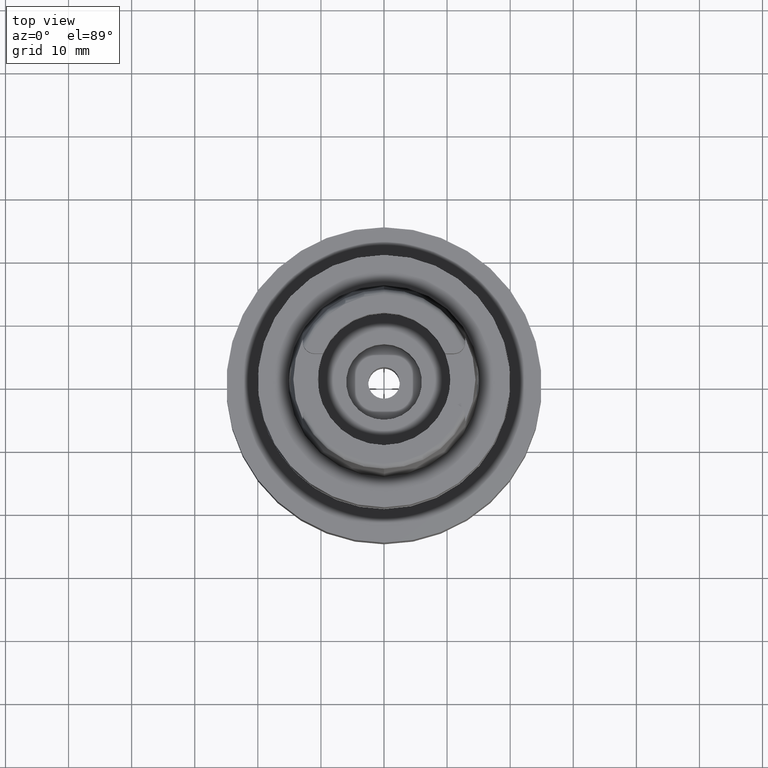
[diagram: clean part render]
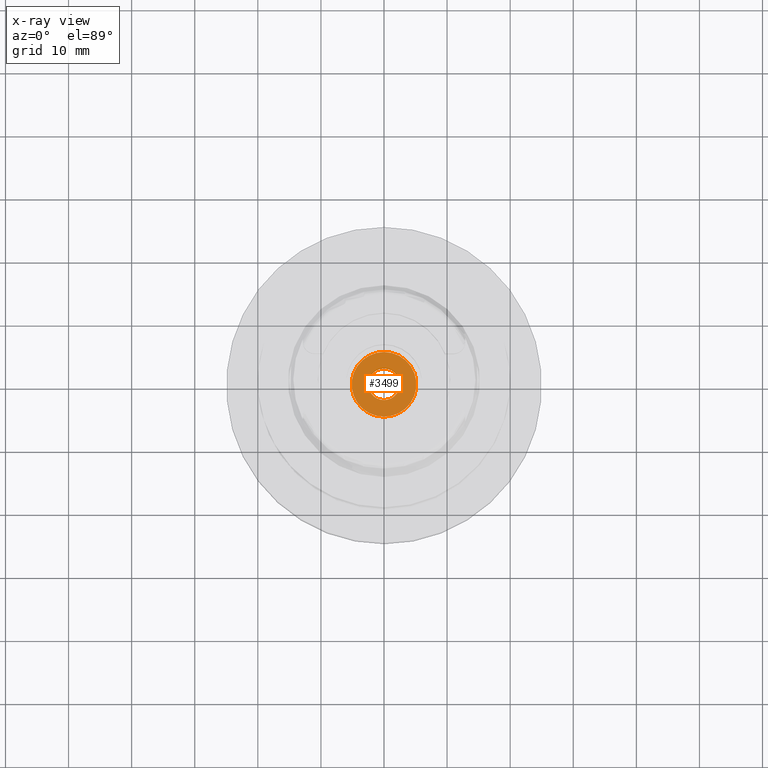
[diagram: x-ray — body ghosted, one internal face saturated and labeled with its STEP entity id]
A machine part, top view, then the same camera in x-ray: the body is ghosted and one INTERNAL B-rep face — a face not visible from any outside direction — is saturated and labeled: STEP entity #3499.
In plain terms, the highlighted planar face has unit normal (0, 0, 1).
Its self-contained STEP definition (entity closure, byte-faithful):
#849=CARTESIAN_POINT('',(0.E0,0.E0,-3.E1));
#850=DIRECTION('',(0.E0,0.E0,1.E0));
#851=DIRECTION('',(0.E0,-1.E0,0.E0));
#852=AXIS2_PLACEMENT_3D('',#849,#850,#851);
#857=CARTESIAN_POINT('',(0.E0,0.E0,-3.E1));
#858=DIRECTION('',(0.E0,0.E0,1.E0));
#859=DIRECTION('',(0.E0,1.E0,0.E0));
#860=AXIS2_PLACEMENT_3D('',#857,#858,#859);
#865=CARTESIAN_POINT('',(0.E0,0.E0,-3.E1));
#866=DIRECTION('',(0.E0,0.E0,-1.E0));
#867=DIRECTION('',(0.E0,-1.E0,0.E0));
#868=AXIS2_PLACEMENT_3D('',#865,#866,#867);
#873=CARTESIAN_POINT('',(0.E0,0.E0,-3.E1));
#874=DIRECTION('',(0.E0,0.E0,-1.E0));
#875=DIRECTION('',(0.E0,1.E0,0.E0));
#876=AXIS2_PLACEMENT_3D('',#873,#874,#875);
#2639=CARTESIAN_POINT('',(0.E0,2.5E0,-3.E1));
#2640=VERTEX_POINT('',#2639);
#2641=CARTESIAN_POINT('',(0.E0,-2.5E0,-3.E1));
#2642=VERTEX_POINT('',#2641);
#2643=CARTESIAN_POINT('',(0.E0,-5.125E0,-3.E1));
#2644=CARTESIAN_POINT('',(0.E0,5.125E0,-3.E1));
#2645=VERTEX_POINT('',#2643);
#2646=VERTEX_POINT('',#2644);
#3484=CARTESIAN_POINT('',(0.E0,0.E0,-3.E1));
#3485=DIRECTION('',(0.E0,0.E0,1.E0));
#3486=DIRECTION('',(0.E0,1.E0,0.E0));
#3487=AXIS2_PLACEMENT_3D('',#3484,#3485,#3486);
#3488=PLANE('',#3487);
#3490=ORIENTED_EDGE('',*,*,#3489,.T.);
#3492=ORIENTED_EDGE('',*,*,#3491,.T.);
#3493=EDGE_LOOP('',(#3490,#3492));
#3494=FACE_OUTER_BOUND('',#3493,.F.);
#3495=ORIENTED_EDGE('',*,*,#3477,.T.);
#3496=ORIENTED_EDGE('',*,*,#3466,.T.);
#3497=EDGE_LOOP('',(#3495,#3496));
#3498=FACE_BOUND('',#3497,.F.);
#853=CIRCLE('',#852,5.125E0);
#861=CIRCLE('',#860,5.125E0);
#869=CIRCLE('',#868,2.5E0);
#877=CIRCLE('',#876,2.5E0);
#3466=EDGE_CURVE('',#2640,#2642,#877,.T.);
#3477=EDGE_CURVE('',#2642,#2640,#869,.T.);
#3489=EDGE_CURVE('',#2645,#2646,#853,.T.);
#3491=EDGE_CURVE('',#2646,#2645,#861,.T.);
#3499=ADVANCED_FACE('',(#3494,#3498),#3488,.F.);